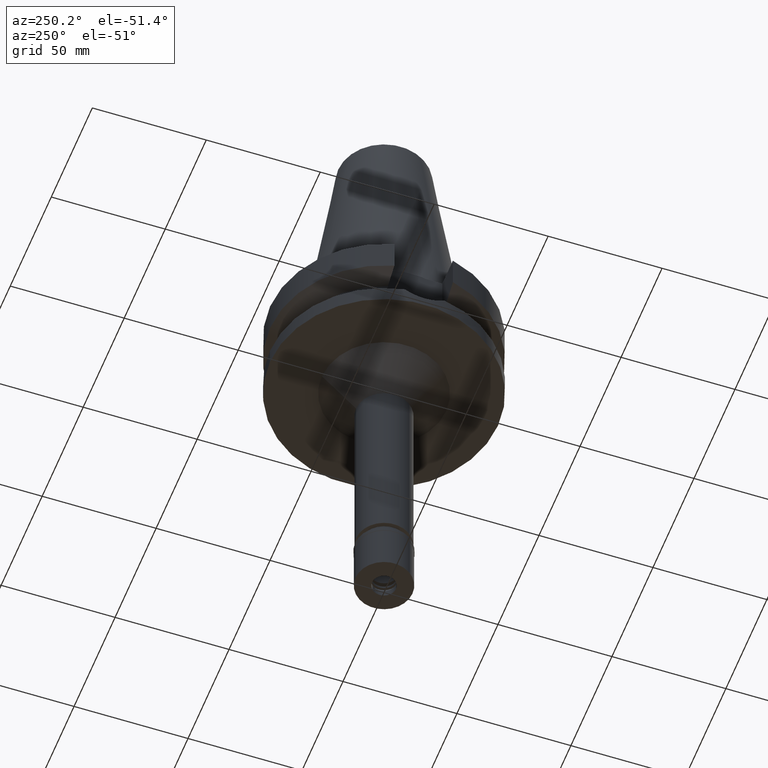
[diagram: clean part render]
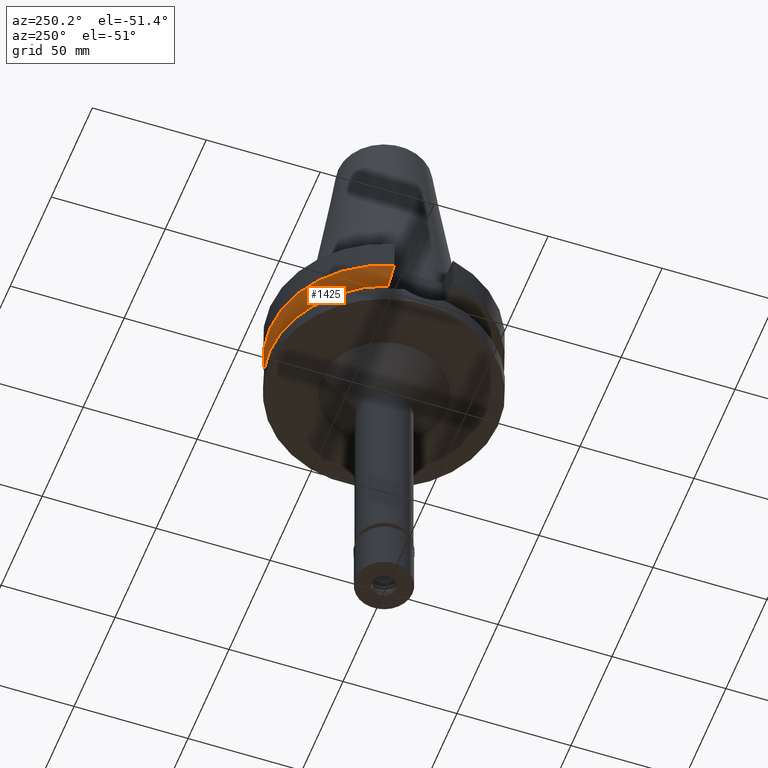
[diagram: same view with one face highlighted and labeled with its STEP entity id]
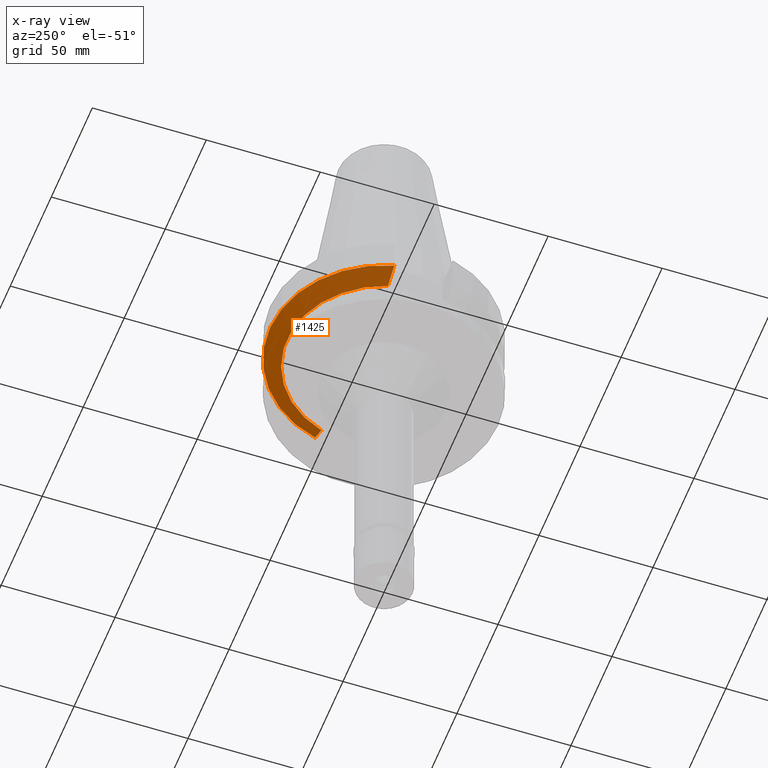
[diagram: x-ray of the same camera — body ghosted, the highlighted face saturated]
A machine part, auxiliary view. The second image highlights one B-rep face of the part: STEP entity #1425.
The next image is the same camera in x-ray: the body ghosted, the highlighted face saturated — about 0% of this face is hidden behind the body in this view.
In plain terms, the highlighted conical surface has half-angle 60 deg.
Its self-contained STEP definition (entity closure, byte-faithful):
#90 = CARTESIAN_POINT ( 'NONE',  ( 0.0000000000000000000, 1.006319759053999930E-14, -15.66269223573000069 ) ) ;
#144 = CARTESIAN_POINT ( 'NONE',  ( 48.32056912815000516, 12.85000385725999905, -15.66265768273000170 ) ) ;
#300 = DIRECTION ( 'NONE',  ( 0.0000000000000000000, 0.0000000000000000000, -1.000000000000000000 ) ) ;
#344 = CARTESIAN_POINT ( 'NONE',  ( 48.32056912815000516, 12.85000385725999905, -15.66265768273000170 ) ) ;
#418 = DIRECTION ( 'NONE',  ( 0.0000000000000000000, 0.0000000000000000000, 1.000000000000000000 ) ) ;
#473 = EDGE_CURVE ( 'NONE', #481, #1989, #1479, .T. ) ;
#481 = VERTEX_POINT ( 'NONE', #144 ) ;
#524 = B_SPLINE_CURVE_WITH_KNOTS ( 'NONE', 3,
 ( #344, #1327, #2306, #2079 ),
 .UNSPECIFIED., .F., .F.,
 ( 4, 4 ),
 ( 0.0000000000000000000, 1.000000000000000000 ),
 .UNSPECIFIED. ) ;
#601 = EDGE_CURVE ( 'NONE', #481, #1284, #524, .T. ) ;
#689 = FACE_OUTER_BOUND ( 'NONE', #2407, .T. ) ;
#804 = ORIENTED_EDGE ( 'NONE', *, *, #1911, .T. ) ;
#847 = CARTESIAN_POINT ( 'NONE',  ( -48.32056912780999625, 12.85000385852000093, -15.66265767138999898 ) ) ;
#858 = CARTESIAN_POINT ( 'NONE',  ( -40.51083188481999997, 12.84999999999999964, -19.99281925464999787 ) ) ;
#1037 = DIRECTION ( 'NONE',  ( -0.9531960443486575674, 0.3023529411764863672, 0.0000000000000000000 ) ) ;
#1061 = DIRECTION ( 'NONE',  ( 0.0000000000000000000, 0.0000000000000000000, 1.000000000000000000 ) ) ;
#1284 = VERTEX_POINT ( 'NONE', #1893 ) ;
#1319 = ORIENTED_EDGE ( 'NONE', *, *, #601, .T. ) ;
#1327 = CARTESIAN_POINT ( 'NONE',  ( 45.51179901593025079, 12.85000770987397090, -17.22986705846993161 ) ) ;
#1403 = DIRECTION ( 'NONE',  ( 0.0000000000000000000, 1.000000000000000000, 0.0000000000000000000 ) ) ;
#1425 = ADVANCED_FACE ( 'NONE', ( #689 ), #1985, .T. ) ;
#1479 = CIRCLE ( 'NONE', #1795, 50.00000000000000000 ) ;
#1503 = ORIENTED_EDGE ( 'NONE', *, *, #1740, .F. ) ;
#1544 = CIRCLE ( 'NONE', #2194, 42.50000000000002132 ) ;
#1574 = CARTESIAN_POINT ( 'NONE',  ( -40.51083188481999997, 12.84999999999999964, -19.99281925464999787 ) ) ;
#1647 = VERTEX_POINT ( 'NONE', #858 ) ;
#1740 = EDGE_CURVE ( 'NONE', #1647, #1284, #1544, .T. ) ;
#1795 = AXIS2_PLACEMENT_3D ( 'NONE', #90, #1061, #2557 ) ;
#1893 = CARTESIAN_POINT ( 'NONE',  ( 40.51083297203000200, 12.84999657246999938, -19.99284555851999912 ) ) ;
#1911 = EDGE_CURVE ( 'NONE', #1647, #1989, #2775, .T. ) ;
#1985 = CONICAL_SURFACE ( 'NONE', #2841, 46.25000000000000000, 1.047197551196400456 ) ;
#1989 = VERTEX_POINT ( 'NONE', #847 ) ;
#2068 = CARTESIAN_POINT ( 'NONE',  ( -42.90863232185251519, 12.84999314245379587, -18.67324368411542324 ) ) ;
#2079 = CARTESIAN_POINT ( 'NONE',  ( 40.51083297203000200, 12.84999657246999938, -19.99284555851999912 ) ) ;
#2087 = CARTESIAN_POINT ( 'NONE',  ( -45.51180301983914944, 12.85000771239541351, -17.22986482407244324 ) ) ;
#2150 = CARTESIAN_POINT ( 'NONE',  ( -48.32056912780999625, 12.85000385852000093, -15.66265767138999898 ) ) ;
#2194 = AXIS2_PLACEMENT_3D ( 'NONE', #2753, #300, #1037 ) ;
#2306 = CARTESIAN_POINT ( 'NONE',  ( 42.90862489466591256, 12.84999313797018594, -18.67324780284967645 ) ) ;
#2407 = EDGE_LOOP ( 'NONE', ( #2414, #1319, #1503, #804 ) ) ;
#2414 = ORIENTED_EDGE ( 'NONE', *, *, #473, .F. ) ;
#2557 = DIRECTION ( 'NONE',  ( 0.0000000000000000000, 1.000000000000000000, 0.0000000000000000000 ) ) ;
#2600 = CARTESIAN_POINT ( 'NONE',  ( 0.0000000000000000000, 1.006319759053999930E-14, -17.82775574519000017 ) ) ;
#2753 = CARTESIAN_POINT ( 'NONE',  ( 0.0000000000000000000, 1.006319759053999930E-14, -19.99281925464999787 ) ) ;
#2775 = B_SPLINE_CURVE_WITH_KNOTS ( 'NONE', 3,
 ( #1574, #2068, #2087, #2150 ),
 .UNSPECIFIED., .F., .F.,
 ( 4, 4 ),
 ( 0.0000000000000000000, 1.000000000000000000 ),
 .UNSPECIFIED. ) ;
#2841 = AXIS2_PLACEMENT_3D ( 'NONE', #2600, #418, #1403 ) ;